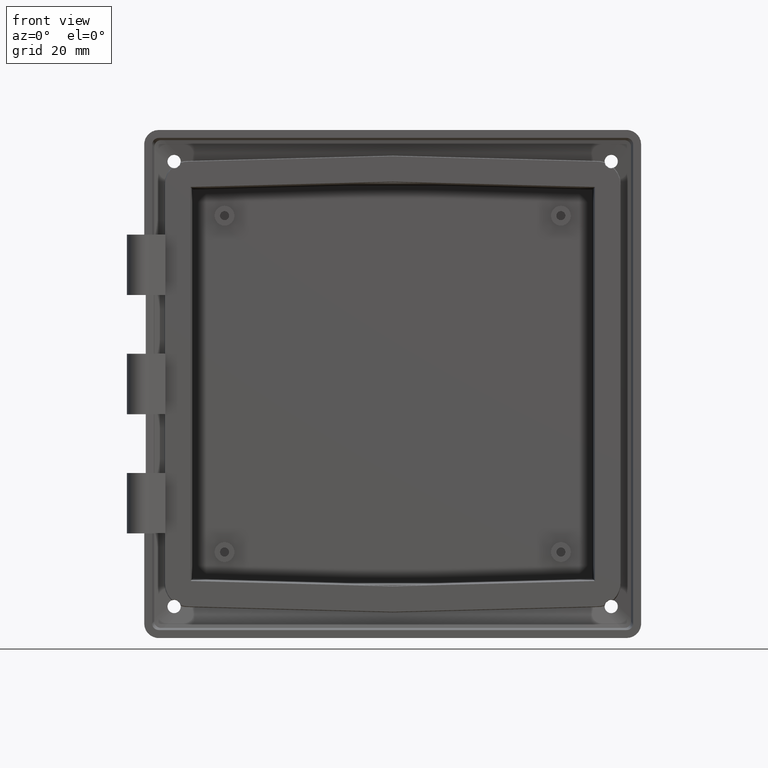
[diagram: clean part render]
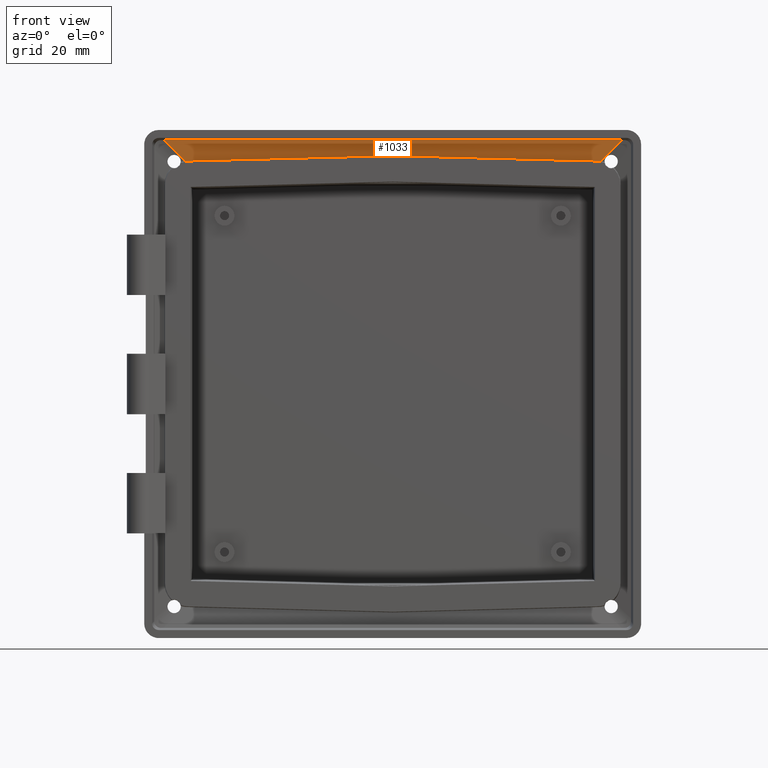
[diagram: same view with one face highlighted and labeled with its STEP entity id]
A machine part, front view. The second image highlights one B-rep face of the part: STEP entity #1033.
In plain terms, the highlighted planar face has unit normal (0, 0.9781, 0.2079).
Its self-contained STEP definition (entity closure, byte-faithful):
#7 = VERTEX_POINT ( 'NONE', #6381 ) ;
#194 = CARTESIAN_POINT ( 'NONE',  ( -77.90348401398856000, 9.226140007143744300, 84.18744419584939500 ) ) ;
#301 = EDGE_LOOP ( 'NONE', ( #1123, #3395, #6173, #921, #4656, #1290, #766 ) ) ;
#359 = VERTEX_POINT ( 'NONE', #1710 ) ;
#514 = AXIS2_PLACEMENT_3D ( 'NONE', #1383, #6001, #5490 ) ;
#696 = CARTESIAN_POINT ( 'NONE',  ( 0.2054761687034178900, 8.796861188800230400, 86.20704224998965500 ) ) ;
#729 = VECTOR ( 'NONE', #4120, 1000.000000000000000 ) ;
#748 = VERTEX_POINT ( 'NONE', #3233 ) ;
#766 = ORIENTED_EDGE ( 'NONE', *, *, #7138, .T. ) ;
#869 = VERTEX_POINT ( 'NONE', #2789 ) ;
#908 = LINE ( 'NONE', #1205, #729 ) ;
#921 = ORIENTED_EDGE ( 'NONE', *, *, #5291, .T. ) ;
#931 = CARTESIAN_POINT ( 'NONE',  ( 1.097754699641573200E-014, 8.795725940042315100, 86.21238317547788200 ) ) ;
#1033 = ADVANCED_FACE ( 'NONE', ( #5234 ), #6553, .F. ) ;
#1123 = ORIENTED_EDGE ( 'NONE', *, *, #7273, .T. ) ;
#1144 = DIRECTION ( 'NONE',  ( 0.9996471083354124800, -0.005523015857513731900, 0.02598374669838642700 ) ) ;
#1205 = CARTESIAN_POINT ( 'NONE',  ( -90.75087530974079200, 6.633389977079150200, 96.38537405364260700 ) ) ;
#1290 = ORIENTED_EDGE ( 'NONE', *, *, #2370, .T. ) ;
#1383 = CARTESIAN_POINT ( 'NONE',  ( -92.87592220716966600, 7.065557197798579400, 94.35218713471636000 ) ) ;
#1661 = LINE ( 'NONE', #5538, #4362 ) ;
#1710 = CARTESIAN_POINT ( 'NONE',  ( 77.60726184945073700, 9.224503389883068400, 84.19514387469166600 ) ) ;
#1766 = CARTESIAN_POINT ( 'NONE',  ( 90.75087530974077800, 6.633389977079146700, 96.38537405364260700 ) ) ;
#1795 = DIRECTION ( 'NONE',  ( -0.6992527780868756900, 0.1486307662483552200, -0.6992527780868756900 ) ) ;
#1974 = LINE ( 'NONE', #3897, #2849 ) ;
#2370 = EDGE_CURVE ( 'NONE', #6168, #7, #5712, .T. ) ;
#2592 = CARTESIAN_POINT ( 'NONE',  ( -78.49314936601879800, 9.238850057570088500, 84.12764810992061400 ) ) ;
#2789 = CARTESIAN_POINT ( 'NONE',  ( 78.49314936601877000, 9.238850057570088500, 84.12764810992059900 ) ) ;
#2849 = VECTOR ( 'NONE', #1144, 999.9999999999998900 ) ;
#2910 = EDGE_CURVE ( 'NONE', #6168, #748, #908, .T. ) ;
#2971 = EDGE_CURVE ( 'NONE', #6155, #869, #6822, .T. ) ;
#3233 = CARTESIAN_POINT ( 'NONE',  ( -86.46601123400476800, 7.544165952240989600, 92.10050997790658300 ) ) ;
#3395 = ORIENTED_EDGE ( 'NONE', *, *, #5055, .T. ) ;
#3593 = CARTESIAN_POINT ( 'NONE',  ( -78.49314936601879800, 9.238850057570088500, 84.12764810992061400 ) ) ;
#3617 = CARTESIAN_POINT ( 'NONE',  ( -78.19903053568158700, 9.230926289435217300, 84.16492650806847600 ) ) ;
#3897 = CARTESIAN_POINT ( 'NONE',  ( -76.65308498003516000, 9.219231595530127200, 84.21994571713550200 ) ) ;
#4120 = DIRECTION ( 'NONE',  ( -0.6992527780868756900, -0.1486307662483552200, 0.6992527780868756900 ) ) ;
#4219 = CARTESIAN_POINT ( 'NONE',  ( 78.49314936601877000, 9.238850057570088500, 84.12764810992059900 ) ) ;
#4345 = VERTEX_POINT ( 'NONE', #931 ) ;
#4362 = VECTOR ( 'NONE', #6095, 1000.000000000000000 ) ;
#4594 = CARTESIAN_POINT ( 'NONE',  ( 77.60726184945073700, 9.224503389883068400, 84.19514387469166600 ) ) ;
#4614 = DIRECTION ( 'NONE',  ( 0.9996471083354124800, 0.005523015857513771000, -0.02598374669838661100 ) ) ;
#4656 = ORIENTED_EDGE ( 'NONE', *, *, #2910, .F. ) ;
#4718 = CARTESIAN_POINT ( 'NONE',  ( 78.19903053568154400, 9.230926289435219100, 84.16492650806846100 ) ) ;
#5055 = EDGE_CURVE ( 'NONE', #359, #869, #6713, .T. ) ;
#5234 = FACE_OUTER_BOUND ( 'NONE', #301, .T. ) ;
#5291 = EDGE_CURVE ( 'NONE', #6155, #748, #1661, .T. ) ;
#5490 = DIRECTION ( 'NONE',  ( 0.0000000000000000000, -0.2079116908177565700, 0.9781476007338061300 ) ) ;
#5538 = CARTESIAN_POINT ( 'NONE',  ( -92.87592220716966600, 7.544165952240989600, 92.10050997790658300 ) ) ;
#5712 =( BOUNDED_CURVE ( )  B_SPLINE_CURVE ( 3, ( #2592, #3617, #194, #6003 ),
 .UNSPECIFIED., .F., .F. ) 
 B_SPLINE_CURVE_WITH_KNOTS ( ( 4, 4 ),
 ( 5.961815582488688000, 6.062714394801343300 ),
 .UNSPECIFIED. ) 
 CURVE ( )  GEOMETRIC_REPRESENTATION_ITEM ( )  RATIONAL_B_SPLINE_CURVE ( ( 1.000000000000000000, 0.9991517990617474500, 0.9991517990617474500, 1.000000000000000000 ) ) 
 REPRESENTATION_ITEM ( '' )  );
#5723 = VECTOR ( 'NONE', #4614, 999.9999999999998900 ) ;
#5747 = CARTESIAN_POINT ( 'NONE',  ( 77.90348401398856000, 9.226140007143746000, 84.18744419584938000 ) ) ;
#6001 = DIRECTION ( 'NONE',  ( 0.0000000000000000000, 0.9781476007338062400, 0.2079116908177565900 ) ) ;
#6003 = CARTESIAN_POINT ( 'NONE',  ( -77.60726184945073700, 9.224503389883066600, 84.19514387469169500 ) ) ;
#6095 = DIRECTION ( 'NONE',  ( -1.000000000000000000, -0.0000000000000000000, -0.0000000000000000000 ) ) ;
#6155 = VERTEX_POINT ( 'NONE', #6963 ) ;
#6168 = VERTEX_POINT ( 'NONE', #3593 ) ;
#6173 = ORIENTED_EDGE ( 'NONE', *, *, #2971, .F. ) ;
#6381 = CARTESIAN_POINT ( 'NONE',  ( -77.60726184945073700, 9.224503389883066600, 84.19514387469169500 ) ) ;
#6553 = PLANE ( 'NONE',  #514 ) ;
#6713 =( BOUNDED_CURVE ( )  B_SPLINE_CURVE ( 3, ( #4594, #5747, #4718, #4219 ),
 .UNSPECIFIED., .F., .F. ) 
 B_SPLINE_CURVE_WITH_KNOTS ( ( 4, 4 ),
 ( 0.2204709123782432600, 0.3213697246908952500 ),
 .UNSPECIFIED. ) 
 CURVE ( )  GEOMETRIC_REPRESENTATION_ITEM ( )  RATIONAL_B_SPLINE_CURVE ( ( 1.000000000000000000, 0.9991517990617475600, 0.9991517990617475600, 1.000000000000000000 ) ) 
 REPRESENTATION_ITEM ( '' )  );
#6822 = LINE ( 'NONE', #1766, #7085 ) ;
#6963 = CARTESIAN_POINT ( 'NONE',  ( 86.46601123400475300, 7.544165952240982500, 92.10050997790658300 ) ) ;
#7085 = VECTOR ( 'NONE', #1795, 1000.000000000000000 ) ;
#7138 = EDGE_CURVE ( 'NONE', #7, #4345, #1974, .T. ) ;
#7226 = LINE ( 'NONE', #696, #5723 ) ;
#7273 = EDGE_CURVE ( 'NONE', #4345, #359, #7226, .T. ) ;